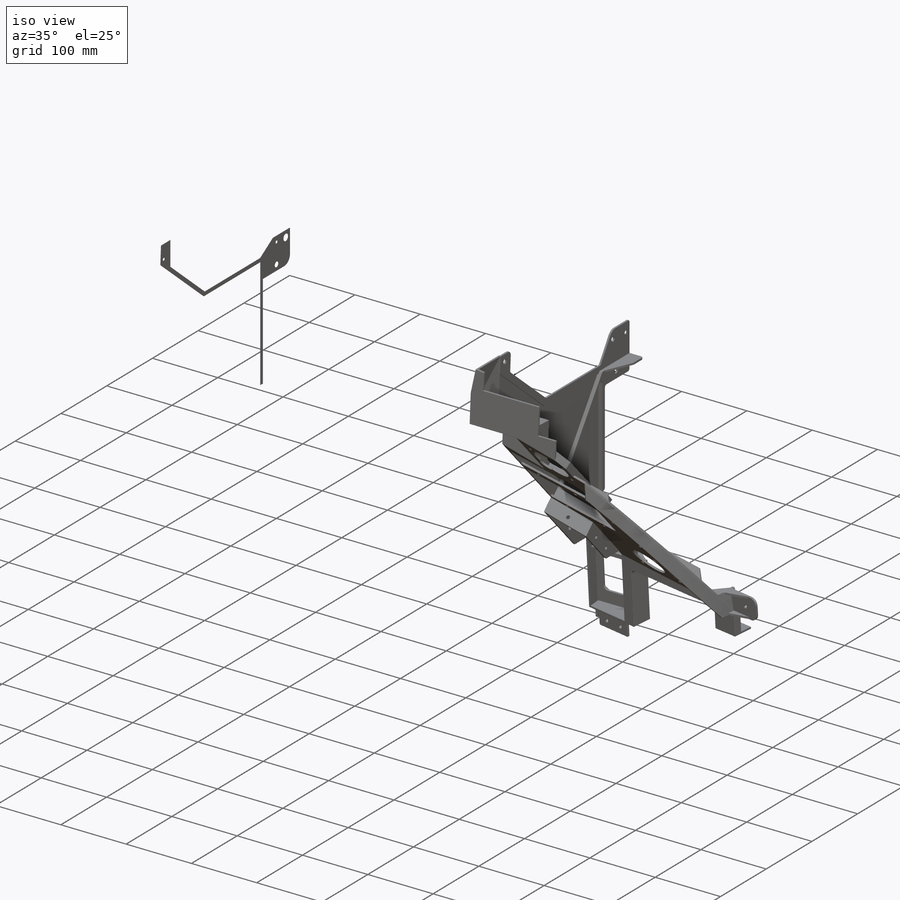
[diagram: iso view]
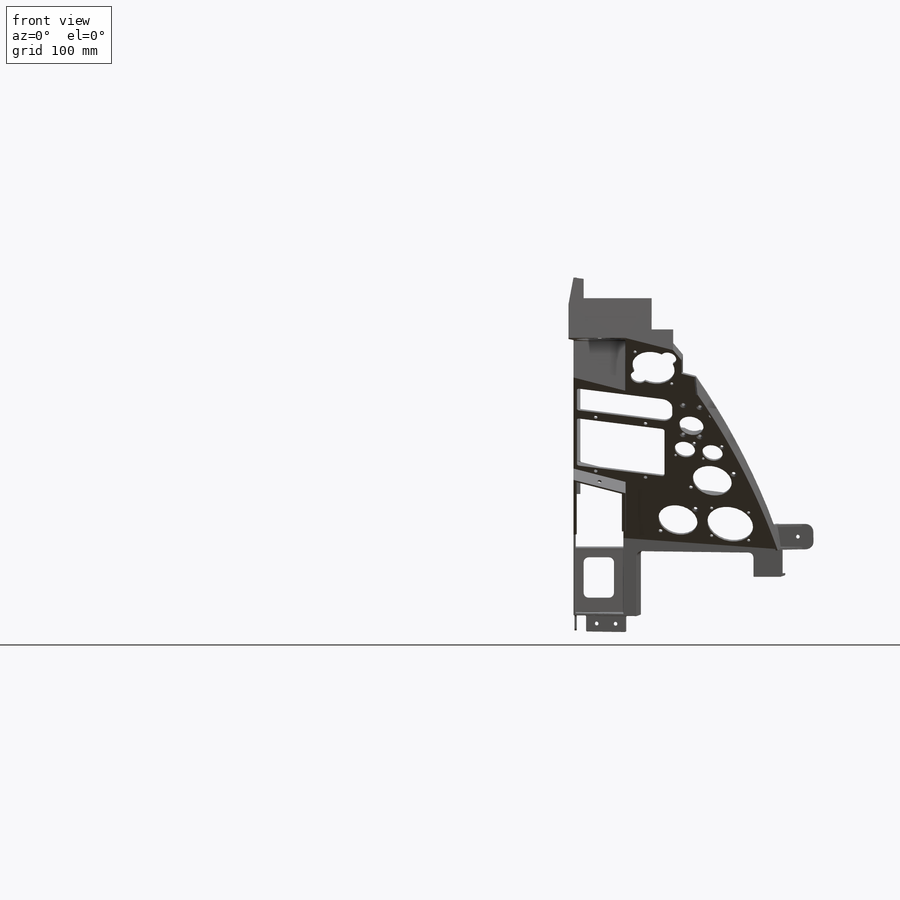
[diagram: front view]
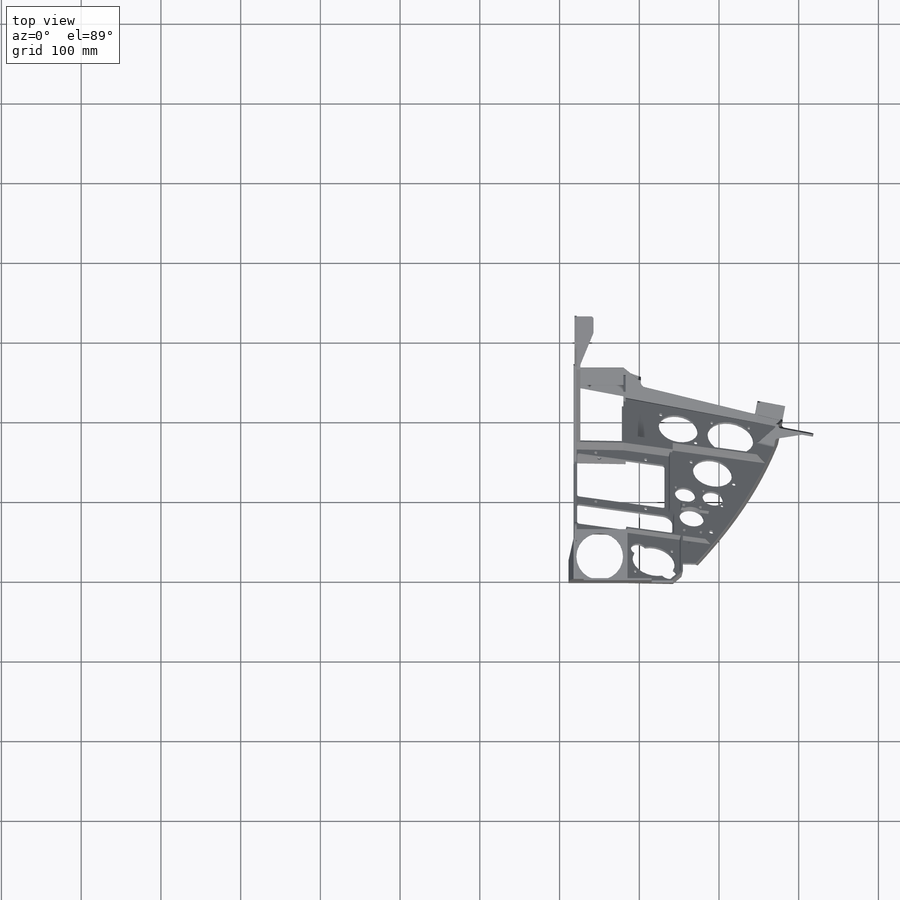
[diagram: top view]
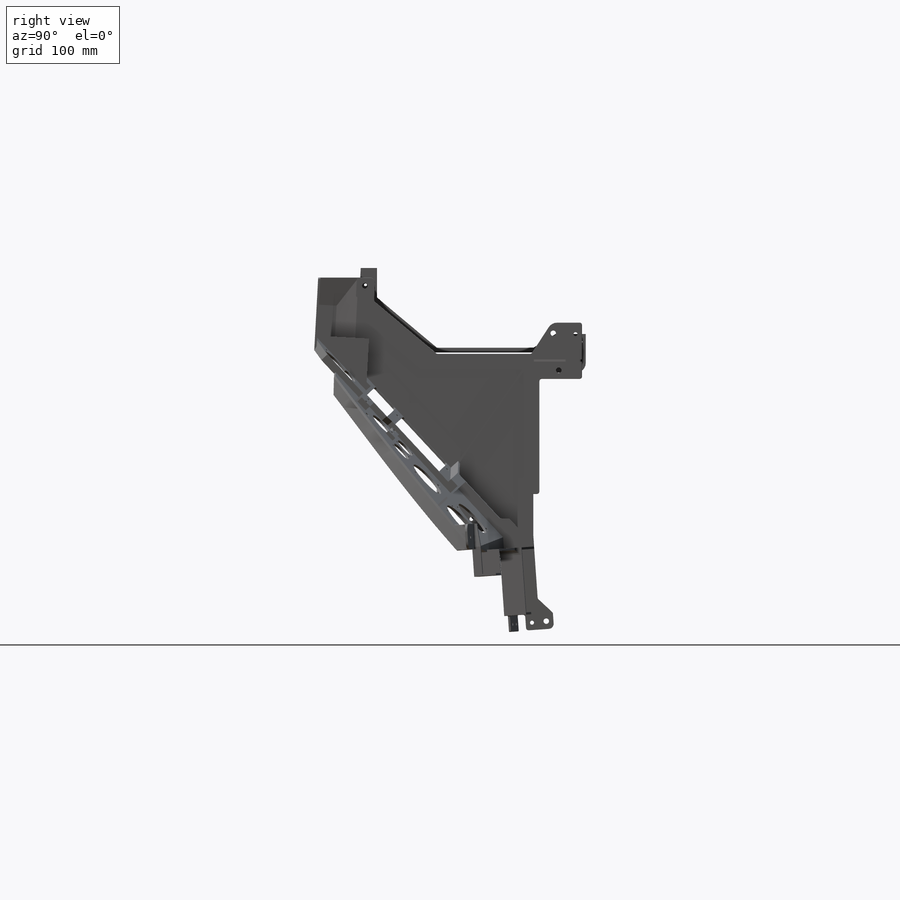
[diagram: right view]
SOLIDWORKS PART (.sldprt)
format: sldprt  version: not decoded by parser v0  size: 7,441,920 bytes
history: native  units: mm
features: sketch x49, extrude x18, plane x16, move_body x4, cut_extrude x4, sweep x2, material x1 + 4 further entries (+36 scaffold rows collapsed; 14 parser-record rows omitted)
feature tree (148):
  scaffold x36  (default folders/planes/origin — collapsed)
  material  "Material <not specified>"
  sketch  "Sketch3"  dims[D1=517.525mm D2=742.95mm]
  extrude  "Extrude1"  Depth=2.54mm
  sketch  "Sketch4"  dims[c1.D1=~36.672384mm c2.D1=140.0deg c2.D2=425.45mm c2.D3=2.54mm]
  extrude  "Extrude3"  [1 undecoded]
  sketch  "Sketch7"  dims[c1.D1=425.45mm c2.D1=220.0deg c3.D1=~96.682522mm c4.D1=220.0deg c4.D2=657.225mm c4.D3=2.54mm]
  extrude  "Extrude4"  [1 undecoded]
  sketch  "Sketch9"  dims[c1.D1=327.025mm c1.D2=327.025mm c2.D1=209.55mm c2.D4=~577.330498mm c3.D4=96.35deg c3.D5=317.5mm c3.D7=101.6mm c4.D5=215.9mm c4.D7=101.6mm c4.D8=~7.496914mm c4.D3=~60.898457mm c4.D1=327.025mm c4.D2=~67.089499mm c5.D2=6.35deg c5.D4=335.788mm c5.D3=57.15mm c5.D6=27.94mm c6.D3=28.448mm]
  "RightAuxConsole"
  parser-record x14  (decoder bookkeeping rows leaked as tree rows — omitted from the tree; the rows remain in map.json)
  move_body  "Body-Move/Copy4"
  extrude  "<RightAuxConsole>-<Fillet69>"  [1 undecoded]
  extrude  "<RightAuxConsole>-<Fillet71>"  [1 undecoded]
  sketch  "Sketch12"  dims[D1=292.1mm]
  extrude  "Extrude7"  Depth=2.54mm
  sketch  "Sketch13"  dims[D1=762.0mm D2=463.55mm]
  "LeftAuxConsole"
  move_body  "Body-Move/Copy6"
  extrude  "<LeftAuxConsole>-<Fillet99>"  [1 undecoded]
  sketch  "Sketch14"  dims[D1=292.1mm D2=317.5mm]
  extrude  "Extrude8"  Depth=2.54mm
  "ModelA-1"
  move_body  "Body-Move/Copy8"
  extrude  "<ModelA-1>-<Fillet10>"  [1 undecoded]
  "ModelA"
  move_body  "Body-Move/Copy10"
  extrude  "<ModelA>-<Fillet14>"  [1 undecoded]
  plane  "Plane Center"
  plane  "Plane1"
  plane  "Plane3"
  sketch  "Sketch83"
  plane  "Plane4"
  plane  "Plane66"
  sketch  "3DSketch66"
  sketch  "Sketch66-1"  dims[D1=577.85mm D2=577.85mm]
  sketch  "Sketch66-2"
  sketch  "Sketch66-3"  dims[c1.D1=311.15mm c1.D2=361.95mm c2.D1=311.15mm c2.D2=361.95mm]
  plane  "Plane2"
  plane  "Plane65"  Offset=177.8mm
  sketch  "3DSketch65"
  sketch  "Sketch65-1"  dims[D1=596.9mm D2=596.9mm]
  sketch  "Sketch65-2"
  sketch  "Sketch65-3"  dims[D1=317.5mm D2=371.475mm]
  plane  "Plane64"  Offset=355.6mm
  sketch  "3DSketch64"
  sketch  "Sketch64-1"  dims[D1=622.3mm D2=622.3mm]
  sketch  "Sketch64-2"
  sketch  "Sketch64-3"  dims[D1=323.85mm D2=385.7625mm]
  plane  "Plane63"  Offset=533.4mm
  sketch  "Sketch63-1"  dims[D1=622.3mm]
  sketch  "Sketch63-2"
  sketch  "Sketch63-3"  dims[D2=330.2mm D1=654.05mm]
  plane  "Plane67"  Offset=203.2mm
  sketch  "3DSketch67"
  sketch  "Sketch67-1"  dims[D1=552.45mm D2=552.45mm D3=654.05mm D4=654.05mm]
  sketch  "Sketch67-2"
  sketch  "Sketch67-3"  dims[c1.D1=654.05mm c1.D2=654.05mm c1.D3=279.4mm c2.D1=327.025mm]
  plane  "Plane68"  Offset=152.4mm
  plane  "Plane69"  Offset=177.8mm
  plane  "Plane70"  Offset=346.075mm
  plane  "Plane71 (Front)"  Offset=381mm
  sketch  "Sketch84"  dims[D1=406.4mm]
  extrude  "RightConsole-1"  Depth=2.54mm
  sketch  "Sketch88"  dims[D1=406.4mm]
  extrude  "RightConsole-2"  Depth=2.54mm
  sketch  "Sketch89"  dims[D1=406.4mm]
  extrude  "LeftConsole-1"  Depth=2.54mm
  sketch  "Sketch90"  dims[D1=406.4mm]
  extrude  "LeftConsole-2"  Depth=2.54mm
  plane  "Plane Top Rail"  Offset=654.05mm
  sketch  "Sketch105"
  cut_extrude  "Extrude22"  [1 undecoded]
  sketch  "Sketch103"
  cut_extrude  "Panel Cut"  [1 undecoded]
  sketch  "Sketch Top Rail"  dims[c1.D1=6.35mm c1.D2=801.6875mm c1.D4=801.6875mm c1.D3=~407.19375mm c2.D4=203.2mm c2.D5=177.8mm c2.D6=412.75mm c2.D7=177.8mm c2.D8=419.1mm c2.D9=177.8mm c2.D10=425.45mm c2.D11=1127.125mm c2.D12=390.525mm c2.D13=133.35mm c2.D14=384.175mm c2.D15=285.75mm c2.D16=438.15mm c2.D17=152.4mm c2.D18=~396.08125mm c2.D1=6.35mm c2.D3=203.2mm c2.D19=76.2mm]
  sketch  "Sketch107"  dims[c1.D1=25.4mm c1.D2=~94.364282mm c2.D2=~64.067786deg c3.D2=152.4mm c3.D3=4.7625mm]
  sketch  "3DSketch14"
  sketch  "3DSketch15"
  sketch  "Sketch108"  dims[D1=25.4mm D2=152.4mm D3=4.7625mm]
  sweep  "BS Top Rail Left"
  sketch  "Sketch112"
  sketch  "Sketch111"  dims[D1=76.2mm]
  cut_extrude  "Front Cut"  [1 undecoded]
  sketch  "Sketch110"  dims[D1=63.5mm]
  cut_extrude  "Top Rail Cut"  [1 undecoded]
  plane  "BS Center Plane"  Offset=0mm
  sketch  "Sketch113"  dims[D1=355.6mm D2=279.4mm]
  sketch  "Sketch116"  dims[D1=25.4mm D2=25.4mm D3=76.2mm]
  extrude  "BS Front Bulkhead"  Depth=12.7mm
  sketch  "Sketch118"
  sketch  "Sketch119"
  sweep  "BS Left Surface"
  sketch  "Sketch119<9>"
  sketch  "Sketch122"  dims[D2=12.7mm D3=6.35mm D1=304.8mm]
  extrude  "BS Right Front side wall"  Depth=2.54mm
  sketch  "Sketch123"
  sketch  "Sketch124"  dims[D1=0.0mm]
  extrude  "A bug patch"  Depth=2.54mm
  extrude  "BS Left Front side wall"  Depth=2.54mm
decode coverage: 41 of 77 modeling features carry decoded parameters; 4 rows unclassified (native names shown)
note: ~ marks probable driven/reference dimensions
note: 11 parameter values undecoded
summary: no parameter record found for 11 features
note: suppression state not decoded; provenance and decode notes live in map.json
